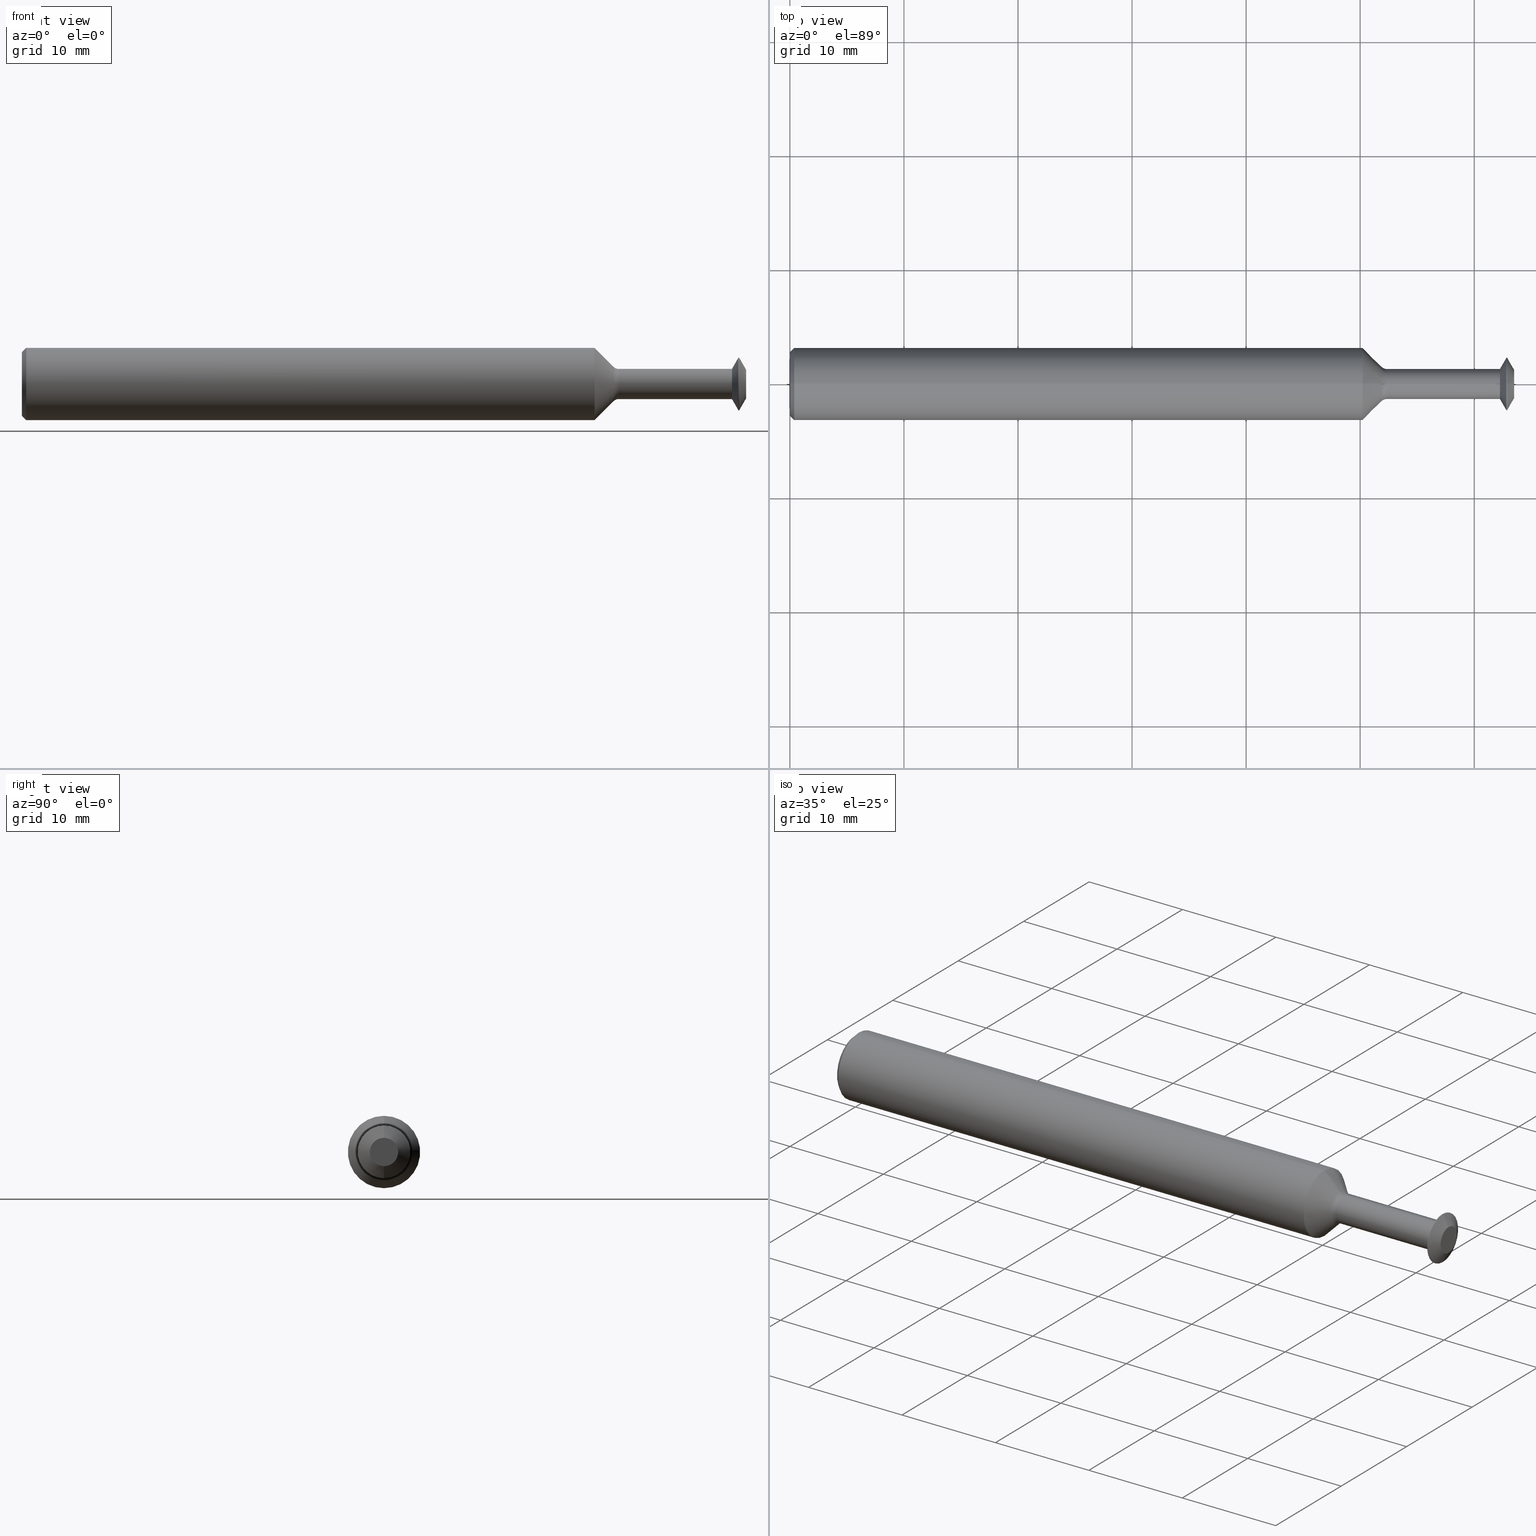
[diagram: canonical four-view strip — front | top / right | iso, engineering-drawing reading convention]
A machine part, canonical four-view strip (front | top / right | iso — engineering-drawing reading convention). The complete STEP part file that produces these views, byte-faithful:
ISO-10303-21;
HEADER;
FILE_DESCRIPTION (( 'STEP AP214' ),
    '1' );
FILE_NAME ('SPTM182.STEP',
    '2019-05-03T19:01:55',
    ( '' ),
    ( '' ),
    'SwSTEP 2.0',
    'SolidWorks 2018',
    '' );
FILE_SCHEMA (( 'AUTOMOTIVE_DESIGN' ));
ENDSEC;

DATA;
#1 = DIRECTION ( 'NONE',  ( -1.000000000000000000, -0.0000000000000000000, -0.0000000000000000000 ) ) ;
#2 = VERTEX_POINT ( 'NONE', #159 ) ;
#3 =( NAMED_UNIT ( * ) SI_UNIT ( $, .STERADIAN. ) SOLID_ANGLE_UNIT ( ) );
#4 = CARTESIAN_POINT ( 'NONE',  ( 2.473397675422181141, 0.0000000000000000000, 0.0000000000000000000 ) ) ;
#5 = SURFACE_STYLE_FILL_AREA ( #278 ) ;
#6 = DIRECTION ( 'NONE',  ( -1.000000000000000000, -0.0000000000000000000, -0.0000000000000000000 ) ) ;
#7 = EDGE_LOOP ( 'NONE', ( #93, #275, #446, #318 ) ) ;
#8 = EDGE_LOOP ( 'NONE', ( #314, #319, #496, #244 ) ) ;
#9 = AXIS2_PLACEMENT_3D ( 'NONE', #356, #221, #312 ) ;
#10 = DIRECTION ( 'NONE',  ( -0.7071067811865482389, 0.0000000000000000000, 0.7071067811865469066 ) ) ;
#11 = DIRECTION ( 'NONE',  ( 0.0000000000000000000, 0.0000000000000000000, 1.000000000000000000 ) ) ;
#12 = DIMENSIONAL_EXPONENTS ( 1.000000000000000000, 0.0000000000000000000, 0.0000000000000000000, 0.0000000000000000000, 0.0000000000000000000, 0.0000000000000000000, 0.0000000000000000000 ) ;
#13 = CIRCLE ( 'NONE', #75, 0.05932233047033651924 ) ;
#14 = ORIENTED_EDGE ( 'NONE', *, *, #162, .F. ) ;
#15 = ADVANCED_FACE ( 'NONE', ( #449 ), #332, .T. ) ;
#16 = AXIS2_PLACEMENT_3D ( 'NONE', #490, #425, #18 ) ;
#17 = DIRECTION ( 'NONE',  ( 0.0000000000000000000, 0.0000000000000000000, 1.000000000000000000 ) ) ;
#18 = DIRECTION ( 'NONE',  ( 0.0000000000000000000, 0.0000000000000000000, 1.000000000000000000 ) ) ;
#19 = CARTESIAN_POINT ( 'NONE',  ( 2.060003014481508465, 9.429780353434618845E-18, -0.07699999999999998512 ) ) ;
#20 = VERTEX_POINT ( 'NONE', #122 ) ;
#21 = CARTESIAN_POINT ( 'NONE',  ( 2.060003014481508465, 0.0000000000000000000, 0.0000000000000000000 ) ) ;
#22 = ADVANCED_FACE ( 'NONE', ( #427 ), #236, .T. ) ;
#23 = CIRCLE ( 'NONE', #192, 0.09099999999999953959 ) ;
#24 = CARTESIAN_POINT ( 'NONE',  ( 2.042325344951845256, 7.264890212845911207E-18, -0.05932233047033651924 ) ) ;
#25 = LINE ( 'NONE', #484, #404 ) ;
#26 = AXIS2_PLACEMENT_3D ( 'NONE', #448, #206, #308 ) ;
#27 = EDGE_LOOP ( 'NONE', ( #82, #358, #390, #385 ) ) ;
#28 = DIRECTION ( 'NONE',  ( -1.000000000000000000, -0.0000000000000000000, -0.0000000000000000000 ) ) ;
#29 = VECTOR ( 'NONE', #255, 39.37007874015748143 ) ;
#30 = DIRECTION ( 'NONE',  ( 0.0000000000000000000, 0.0000000000000000000, 1.000000000000000000 ) ) ;
#31 = ORIENTED_EDGE ( 'NONE', *, *, #414, .T. ) ;
#32 = DIRECTION ( 'NONE',  ( -1.000000000000000000, -0.0000000000000000000, -0.0000000000000000000 ) ) ;
#33 = EDGE_CURVE ( 'NONE', #78, #283, #131, .T. ) ;
#34 = VECTOR ( 'NONE', #362, 39.37007874015748854 ) ;
#35 = ORIENTED_EDGE ( 'NONE', *, *, #119, .T. ) ;
#36 = CYLINDRICAL_SURFACE ( 'NONE', #224, 0.1248500000000000026 ) ;
#37 = AXIS2_PLACEMENT_3D ( 'NONE', #21, #391, #17 ) ;
#38 = ORIENTED_EDGE ( 'NONE', *, *, #245, .F. ) ;
#39 = DIRECTION ( 'NONE',  ( -1.000000000000000000, -0.0000000000000000000, -0.0000000000000000000 ) ) ;
#40 = FACE_OUTER_BOUND ( 'NONE', #248, .T. ) ;
#41 = CLOSED_SHELL ( 'NONE', ( #287, #90, #250, #474, #15, #51, #480, #53, #443, #47, #375, #22, #141, #135, #256, #409, #216, #133 ) ) ;
#42 = DIRECTION ( 'NONE',  ( 0.0000000000000000000, -1.224646799147353207E-16, 1.000000000000000000 ) ) ;
#43 = AXIS2_PLACEMENT_3D ( 'NONE', #187, #361, #165 ) ;
#44 =( LENGTH_UNIT ( ) NAMED_UNIT ( * ) SI_UNIT ( $, .METRE. ) );
#45 = LINE ( 'NONE', #407, #79 ) ;
#46 = DIRECTION ( 'NONE',  ( 0.0000000000000000000, 0.0000000000000000000, -1.000000000000000000 ) ) ;
#47 = ADVANCED_FACE ( 'NONE', ( #228 ), #145, .T. ) ;
#48 = DIRECTION ( 'NONE',  ( 0.0000000000000000000, 0.0000000000000000000, 1.000000000000000000 ) ) ;
#49 = DIRECTION ( 'NONE',  ( -1.000000000000000000, -0.0000000000000000000, -0.0000000000000000000 ) ) ;
#50 = ORIENTED_EDGE ( 'NONE', *, *, #126, .F. ) ;
#51 = ADVANCED_FACE ( 'NONE', ( #418 ), #153, .T. ) ;
#52 = DIRECTION ( 'NONE',  ( -0.4977310399126123608, 0.0000000000000000000, 0.8673314314075728504 ) ) ;
#53 = ADVANCED_FACE ( 'NONE', ( #341 ), #457, .T. ) ;
#54 =( CONVERSION_BASED_UNIT ( 'INCH', #209 ) LENGTH_UNIT ( ) NAMED_UNIT ( #169 ) );
#55 = AXIS2_PLACEMENT_3D ( 'NONE', #495, #242, #468 ) ;
#56 = VERTEX_POINT ( 'NONE', #455 ) ;
#57 = VERTEX_POINT ( 'NONE', #280 ) ;
#58 = FILL_AREA_STYLE_COLOUR ( '', #494 ) ;
#59 = LENGTH_MEASURE_WITH_UNIT ( LENGTH_MEASURE( 0.02539999999999999897 ), #44 );
#60 = CARTESIAN_POINT ( 'NONE',  ( 2.060003014481508465, 0.0000000000000000000, 0.07699999999999998512 ) ) ;
#61 = CARTESIAN_POINT ( 'NONE',  ( 2.060003014481508465, 0.0000000000000000000, 0.0000000000000000000 ) ) ;
#62 = FACE_OUTER_BOUND ( 'NONE', #205, .T. ) ;
#63 = AXIS2_PLACEMENT_3D ( 'NONE', #220, #1, #481 ) ;
#64 = EDGE_LOOP ( 'NONE', ( #296, #203, #298, #333 ) ) ;
#65 = DIRECTION ( 'NONE',  ( 1.000000000000000000, 0.0000000000000000000, 0.0000000000000000000 ) ) ;
#66 = FILL_AREA_STYLE ('',( #58 ) ) ;
#67 = CARTESIAN_POINT ( 'NONE',  ( 2.500000000000000000, 6.000769315821972746E-18, -0.04899999999999953004 ) ) ;
#68 = UNCERTAINTY_MEASURE_WITH_UNIT (LENGTH_MEASURE( 1.000000000000000082E-05 ), #54, 'distance_accuracy_value', 'NONE');
#69 = ORIENTED_EDGE ( 'NONE', *, *, #177, .T. ) ;
#70 = VERTEX_POINT ( 'NONE', #71 ) ;
#71 = CARTESIAN_POINT ( 'NONE',  ( 2.500000000000000000, 0.0000000000000000000, 0.04899999999999953004 ) ) ;
#72 = CARTESIAN_POINT ( 'NONE',  ( 2.451016945457063834, 0.0000000000000000000, 0.0000000000000000000 ) ) ;
#73 = TOROIDAL_SURFACE ( 'NONE', #9, 0.07699999999999998512, 0.02499999999999983485 ) ;
#74 = CARTESIAN_POINT ( 'NONE',  ( 1.976797675422181433, 0.0000000000000000000, 0.0000000000000000000 ) ) ;
#75 = AXIS2_PLACEMENT_3D ( 'NONE', #227, #339, #30 ) ;
#76 = PRESENTATION_STYLE_ASSIGNMENT (( #359 ) ) ;
#77 = CYLINDRICAL_SURFACE ( 'NONE', #214, 0.05200000000000008088 ) ;
#78 = VERTEX_POINT ( 'NONE', #292 ) ;
#79 = VECTOR ( 'NONE', #52, 39.37007874015748854 ) ;
#80 = ORIENTED_EDGE ( 'NONE', *, *, #397, .T. ) ;
#81 =( NAMED_UNIT ( * ) SI_UNIT ( $, .STERADIAN. ) SOLID_ANGLE_UNIT ( ) );
#82 = ORIENTED_EDGE ( 'NONE', *, *, #33, .F. ) ;
#83 = CARTESIAN_POINT ( 'NONE',  ( 2.500000000000000000, 0.0000000000000000000, 0.0000000000000000000 ) ) ;
#84 = AXIS2_PLACEMENT_3D ( 'NONE', #235, #486, #240 ) ;
#85 = DIRECTION ( 'NONE',  ( -1.000000000000000000, -0.0000000000000000000, -0.0000000000000000000 ) ) ;
#86 = CARTESIAN_POINT ( 'NONE',  ( 0.01500000000000024925, 0.0000000000000000000, 0.1248500000000000026 ) ) ;
#87 = CYLINDRICAL_SURFACE ( 'NONE', #233, 0.09099999999999953959 ) ;
#88 = CARTESIAN_POINT ( 'NONE',  ( 2.042325344951845256, 0.0000000000000000000, 0.0000000000000000000 ) ) ;
#89 = EDGE_CURVE ( 'NONE', #237, #150, #161, .T. ) ;
#90 = ADVANCED_FACE ( 'NONE', ( #290 ), #247, .T. ) ;
#91 = CARTESIAN_POINT ( 'NONE',  ( 0.0000000000000000000, 1.114428587224085715E-17, -0.09099999999999953959 ) ) ;
#92 = CIRCLE ( 'NONE', #182, 0.04899999999999953004 ) ;
#93 = ORIENTED_EDGE ( 'NONE', *, *, #324, .T. ) ;
#94 = DIRECTION ( 'NONE',  ( 0.0000000000000000000, 0.0000000000000000000, -1.000000000000000000 ) ) ;
#95 = AXIS2_PLACEMENT_3D ( 'NONE', #309, #269, #357 ) ;
#96 = VECTOR ( 'NONE', #226, 39.37007874015748143 ) ;
#97 = CARTESIAN_POINT ( 'NONE',  ( 2.473397675422181141, 0.0000000000000000000, 0.0000000000000000000 ) ) ;
#98 = CARTESIAN_POINT ( 'NONE',  ( 2.500000000000000000, 0.0000000000000000000, 0.0000000000000000000 ) ) ;
#99 = ORIENTED_EDGE ( 'NONE', *, *, #324, .F. ) ;
#100 = CARTESIAN_POINT ( 'NONE',  ( 1.976797675422181433, 1.528971528735470422E-17, -0.1248500000000000026 ) ) ;
#101 = EDGE_LOOP ( 'NONE', ( #99, #121 ) ) ;
#102 = CARTESIAN_POINT ( 'NONE',  ( 0.0000000000000000000, 0.0000000000000000000, 0.0000000000000000000 ) ) ;
#103 = AXIS2_PLACEMENT_3D ( 'NONE', #377, #424, #225 ) ;
#104 = LINE ( 'NONE', #306, #463 ) ;
#105 = EDGE_LOOP ( 'NONE', ( #450, #346, #376, #125 ) ) ;
#106 = CARTESIAN_POINT ( 'NONE',  ( 2.473397675422181141, 0.0000000000000000000, 0.0000000000000000000 ) ) ;
#107 = DIRECTION ( 'NONE',  ( 0.0000000000000000000, 0.0000000000000000000, -1.000000000000000000 ) ) ;
#108 = PRODUCT_DEFINITION_SHAPE ( 'NONE', 'NONE',  #363 ) ;
#109 = ORIENTED_EDGE ( 'NONE', *, *, #245, .T. ) ;
#110 = CARTESIAN_POINT ( 'NONE',  ( 2.060003014481508465, 0.0000000000000000000, 0.05200000000000015721 ) ) ;
#111 = VERTEX_POINT ( 'NONE', #331 ) ;
#112 = DIRECTION ( 'NONE',  ( -1.000000000000000000, -0.0000000000000000000, -0.0000000000000000000 ) ) ;
#113 = DIRECTION ( 'NONE',  ( -1.000000000000000000, -0.0000000000000000000, -0.0000000000000000000 ) ) ;
#114 = CONICAL_SURFACE ( 'NONE', #343, 0.05932233047033651924, 0.7853981633974473908 ) ;
#115 = VECTOR ( 'NONE', #85, 39.37007874015748143 ) ;
#116 = DIRECTION ( 'NONE',  ( 0.0000000000000000000, 0.0000000000000000000, 1.000000000000000000 ) ) ;
#117 = FACE_OUTER_BOUND ( 'NONE', #101, .T. ) ;
#118 = VECTOR ( 'NONE', #487, 39.37007874015748143 ) ;
#119 = EDGE_CURVE ( 'NONE', #57, #237, #13, .T. ) ;
#120 =( LENGTH_UNIT ( ) NAMED_UNIT ( * ) SI_UNIT ( $, .METRE. ) );
#121 = ORIENTED_EDGE ( 'NONE', *, *, #177, .F. ) ;
#122 = CARTESIAN_POINT ( 'NONE',  ( 2.451016945457063834, 0.0000000000000000000, -0.05200000000000000455 ) ) ;
#123 = CONICAL_SURFACE ( 'NONE', #419, 0.1098499999999999199, 0.7853981633974426169 ) ;
#124 = AXIS2_PLACEMENT_3D ( 'NONE', #155, #180, #194 ) ;
#125 = ORIENTED_EDGE ( 'NONE', *, *, #456, .T. ) ;
#126 = EDGE_CURVE ( 'NONE', #20, #56, #25, .T. ) ;
#127 = CARTESIAN_POINT ( 'NONE',  ( 2.500000000000000000, 8.572527594031414950E-18, -0.04899999999999953004 ) ) ;
#128 = CIRCLE ( 'NONE', #37, 0.05200000000000015721 ) ;
#129 = CARTESIAN_POINT ( 'NONE',  ( 1.976797675422181433, 0.0000000000000000000, 0.1248500000000000026 ) ) ;
#130 = DIRECTION ( 'NONE',  ( 0.0000000000000000000, 0.0000000000000000000, 1.000000000000000000 ) ) ;
#131 = LINE ( 'NONE', #274, #118 ) ;
#132 = ORIENTED_EDGE ( 'NONE', *, *, #89, .F. ) ;
#133 = ADVANCED_FACE ( 'NONE', ( #438 ), #172, .T. ) ;
#134 =( NAMED_UNIT ( * ) PLANE_ANGLE_UNIT ( ) SI_UNIT ( $, .RADIAN. ) );
#135 = ADVANCED_FACE ( 'NONE', ( #40 ), #304, .F. ) ;
#136 = CIRCLE ( 'NONE', #84, 0.05200000000000000455 ) ;
#137 = VERTEX_POINT ( 'NONE', #417 ) ;
#138 = PRODUCT ( 'SPTM182', 'SPTM182', '', ( #195 ) ) ;
#139 = DIRECTION ( 'NONE',  ( -1.000000000000000000, -0.0000000000000000000, -0.0000000000000000000 ) ) ;
#140 = DIRECTION ( 'NONE',  ( -1.000000000000000000, -0.0000000000000000000, -0.0000000000000000000 ) ) ;
#141 = ADVANCED_FACE ( 'NONE', ( #62 ), #77, .T. ) ;
#142 = DIRECTION ( 'NONE',  ( -1.000000000000000000, -0.0000000000000000000, -0.0000000000000000000 ) ) ;
#143 =( GEOMETRIC_REPRESENTATION_CONTEXT ( 3 ) GLOBAL_UNCERTAINTY_ASSIGNED_CONTEXT ( ( #68 ) ) GLOBAL_UNIT_ASSIGNED_CONTEXT ( ( #54, #134, #207 ) ) REPRESENTATION_CONTEXT ( 'NONE', 'WORKASPACE' ) );
#144 = CARTESIAN_POINT ( 'NONE',  ( 0.0000000000000000000, 0.0000000000000000000, -0.1098499999999999199 ) ) ;
#145 = CONICAL_SURFACE ( 'NONE', #426, 0.04899999999999953004, 1.049815545074588963 ) ;
#146 = ORIENTED_EDGE ( 'NONE', *, *, #273, .F. ) ;
#147 = LINE ( 'NONE', #251, #217 ) ;
#148 = AXIS2_PLACEMENT_3D ( 'NONE', #60, #460, #211 ) ;
#149 = CARTESIAN_POINT ( 'NONE',  ( 2.473397675422181141, 1.114428587224085715E-17, 0.09099999999999953959 ) ) ;
#150 = VERTEX_POINT ( 'NONE', #100 ) ;
#151 = EDGE_CURVE ( 'NONE', #272, #283, #488, .T. ) ;
#152 = LENGTH_MEASURE_WITH_UNIT ( LENGTH_MEASURE( 0.02539999999999999897 ), #120 );
#153 = CONICAL_SURFACE ( 'NONE', #500, 0.09099999999999953959, 1.049815545074589851 ) ;
#154 = VERTEX_POINT ( 'NONE', #110 ) ;
#155 = CARTESIAN_POINT ( 'NONE',  ( 2.475897675422181088, 0.0000000000000000000, 0.0000000000000000000 ) ) ;
#156 = LINE ( 'NONE', #174, #299 ) ;
#157 = AXIS2_PLACEMENT_3D ( 'NONE', #61, #259, #499 ) ;
#158 = EDGE_LOOP ( 'NONE', ( #132, #364, #483, #282 ) ) ;
#159 = CARTESIAN_POINT ( 'NONE',  ( 2.451016945457063834, 8.756224613903546798E-18, 0.05200000000000000455 ) ) ;
#160 = PLANE ( 'NONE',  #263 ) ;
#161 = LINE ( 'NONE', #24, #260 ) ;
#162 = EDGE_CURVE ( 'NONE', #423, #497, #104, .T. ) ;
#163 = ORIENTED_EDGE ( 'NONE', *, *, #434, .F. ) ;
#164 =( LENGTH_UNIT ( ) NAMED_UNIT ( * ) SI_UNIT ( $, .METRE. ) );
#165 = DIRECTION ( 'NONE',  ( 0.0000000000000000000, 0.0000000000000000000, -1.000000000000000000 ) ) ;
#166 = DIRECTION ( 'NONE',  ( 0.0000000000000000000, 0.0000000000000000000, 1.000000000000000000 ) ) ;
#167 = LINE ( 'NONE', #186, #96 ) ;
#168 = FILL_AREA_STYLE_COLOUR ( '', #472 ) ;
#169 = DIMENSIONAL_EXPONENTS ( 1.000000000000000000, 0.0000000000000000000, 0.0000000000000000000, 0.0000000000000000000, 0.0000000000000000000, 0.0000000000000000000, 0.0000000000000000000 ) ;
#170 = DIRECTION ( 'NONE',  ( -1.000000000000000000, -0.0000000000000000000, -0.0000000000000000000 ) ) ;
#171 =( NAMED_UNIT ( * ) PLANE_ANGLE_UNIT ( ) SI_UNIT ( $, .RADIAN. ) );
#172 = CONICAL_SURFACE ( 'NONE', #43, 0.1098499999999999199, 0.7853981633974426169 ) ;
#173 = EDGE_LOOP ( 'NONE', ( #432, #365, #454, #271 ) ) ;
#174 = CARTESIAN_POINT ( 'NONE',  ( 2.042325344951845256, 0.0000000000000000000, 0.05932233047033651924 ) ) ;
#175 = AXIS2_PLACEMENT_3D ( 'NONE', #453, #353, #48 ) ;
#176 = LINE ( 'NONE', #91, #29 ) ;
#177 = EDGE_CURVE ( 'NONE', #198, #70, #92, .T. ) ;
#178 = ORIENTED_EDGE ( 'NONE', *, *, #447, .T. ) ;
#179 = ORIENTED_EDGE ( 'NONE', *, *, #300, .T. ) ;
#180 = DIRECTION ( 'NONE',  ( -1.000000000000000000, -0.0000000000000000000, -0.0000000000000000000 ) ) ;
#181 = DIRECTION ( 'NONE',  ( 0.0000000000000000000, 0.0000000000000000000, 1.000000000000000000 ) ) ;
#182 = AXIS2_PLACEMENT_3D ( 'NONE', #83, #281, #469 ) ;
#183 = DIRECTION ( 'NONE',  ( 1.000000000000000000, 0.0000000000000000000, 0.0000000000000000000 ) ) ;
#184 = ORIENTED_EDGE ( 'NONE', *, *, #294, .T. ) ;
#185 = VERTEX_POINT ( 'NONE', #249 ) ;
#186 = CARTESIAN_POINT ( 'NONE',  ( 0.0000000000000000000, 6.368163355566246458E-18, -0.05200000000000008088 ) ) ;
#187 = CARTESIAN_POINT ( 'NONE',  ( 0.0000000000000000000, 0.0000000000000000000, 0.0000000000000000000 ) ) ;
#188 = UNCERTAINTY_MEASURE_WITH_UNIT (LENGTH_MEASURE( 1.000000000000000082E-05 ), #410, 'distance_accuracy_value', 'NONE');
#189 = ORIENTED_EDGE ( 'NONE', *, *, #465, .F. ) ;
#190 = VERTEX_POINT ( 'NONE', #218 ) ;
#191 = DIRECTION ( 'NONE',  ( 0.0000000000000000000, 0.0000000000000000000, 1.000000000000000000 ) ) ;
#192 = AXIS2_PLACEMENT_3D ( 'NONE', #370, #28, #349 ) ;
#193 = CARTESIAN_POINT ( 'NONE',  ( 0.0000000000000000000, 0.0000000000000000000, 0.0000000000000000000 ) ) ;
#194 = DIRECTION ( 'NONE',  ( 0.0000000000000000000, 0.0000000000000000000, 1.000000000000000000 ) ) ;
#195 = PRODUCT_CONTEXT ( 'NONE', #264, 'mechanical' ) ;
#196 = EDGE_CURVE ( 'NONE', #198, #190, #197, .T. ) ;
#197 = LINE ( 'NONE', #67, #34 ) ;
#198 = VERTEX_POINT ( 'NONE', #127 ) ;
#199 = APPLICATION_PROTOCOL_DEFINITION ( 'draft international standard', 'automotive_design', 1998, #310 ) ;
#200 = AXIS2_PLACEMENT_3D ( 'NONE', #493, #381, #415 ) ;
#201 = FACE_OUTER_BOUND ( 'NONE', #173, .T. ) ;
#202 = PRESENTATION_LAYER_ASSIGNMENT (  '', '', ( #257 ) ) ;
#203 = ORIENTED_EDGE ( 'NONE', *, *, #383, .T. ) ;
#204 = DIRECTION ( 'NONE',  ( 0.4977310399126116947, 1.062174661273176990E-16, 0.8673314314075734055 ) ) ;
#205 = EDGE_LOOP ( 'NONE', ( #232, #178, #261, #439 ) ) ;
#206 = DIRECTION ( 'NONE',  ( -1.000000000000000000, -0.0000000000000000000, -0.0000000000000000000 ) ) ;
#207 =( NAMED_UNIT ( * ) SI_UNIT ( $, .STERADIAN. ) SOLID_ANGLE_UNIT ( ) );
#208 = CIRCLE ( 'NONE', #16, 0.05932233047033651924 ) ;
#209 = LENGTH_MEASURE_WITH_UNIT ( LENGTH_MEASURE( 0.02539999999999999897 ), #164 );
#210 = CARTESIAN_POINT ( 'NONE',  ( 2.060003014481508465, 0.0000000000000000000, 0.0000000000000000000 ) ) ;
#211 = DIRECTION ( 'NONE',  ( 0.0000000000000000000, 0.0000000000000000000, -1.000000000000000000 ) ) ;
#212 = DIRECTION ( 'NONE',  ( 0.0000000000000000000, 0.0000000000000000000, 1.000000000000000000 ) ) ;
#213 = CIRCLE ( 'NONE', #238, 0.09099999999999953959 ) ;
#214 = AXIS2_PLACEMENT_3D ( 'NONE', #413, #170, #181 ) ;
#215 = ORIENTED_EDGE ( 'NONE', *, *, #267, .F. ) ;
#216 = ADVANCED_FACE ( 'NONE', ( #501 ), #160, .F. ) ;
#217 = VECTOR ( 'NONE', #49, 39.37007874015748143 ) ;
#218 = CARTESIAN_POINT ( 'NONE',  ( 2.475897675422181088, 1.114428587224085561E-17, -0.09099999999999953959 ) ) ;
#219 = ORIENTED_EDGE ( 'NONE', *, *, #422, .F. ) ;
#220 = CARTESIAN_POINT ( 'NONE',  ( 0.0000000000000000000, 0.0000000000000000000, 0.0000000000000000000 ) ) ;
#221 = DIRECTION ( 'NONE',  ( -1.000000000000000000, -0.0000000000000000000, -0.0000000000000000000 ) ) ;
#222 = DIRECTION ( 'NONE',  ( 1.000000000000000000, 0.0000000000000000000, 0.0000000000000000000 ) ) ;
#223 = CIRCLE ( 'NONE', #395, 0.02499999999999983485 ) ;
#224 = AXIS2_PLACEMENT_3D ( 'NONE', #433, #32, #372 ) ;
#225 = DIRECTION ( 'NONE',  ( 0.0000000000000000000, 0.0000000000000000000, 1.000000000000000000 ) ) ;
#226 = DIRECTION ( 'NONE',  ( -1.000000000000000000, -0.0000000000000000000, -0.0000000000000000000 ) ) ;
#227 = CARTESIAN_POINT ( 'NONE',  ( 2.042325344951845256, 0.0000000000000000000, 0.0000000000000000000 ) ) ;
#228 = FACE_OUTER_BOUND ( 'NONE', #265, .T. ) ;
#229 = DIRECTION ( 'NONE',  ( -1.000000000000000000, -0.0000000000000000000, -0.0000000000000000000 ) ) ;
#230 = AXIS2_PLACEMENT_3D ( 'NONE', #321, #229, #387 ) ;
#231 = CARTESIAN_POINT ( 'NONE',  ( 0.0000000000000000000, 0.0000000000000000000, 0.0000000000000000000 ) ) ;
#232 = ORIENTED_EDGE ( 'NONE', *, *, #345, .F. ) ;
#233 = AXIS2_PLACEMENT_3D ( 'NONE', #193, #112, #477 ) ;
#234 = LINE ( 'NONE', #307, #327 ) ;
#235 = CARTESIAN_POINT ( 'NONE',  ( 2.451016945457063834, 0.0000000000000000000, 0.0000000000000000000 ) ) ;
#236 = CONICAL_SURFACE ( 'NONE', #451, 0.09099999999999953959, 1.049815545074589851 ) ;
#237 = VERTEX_POINT ( 'NONE', #288 ) ;
#238 = AXIS2_PLACEMENT_3D ( 'NONE', #97, #441, #212 ) ;
#239 = FACE_OUTER_BOUND ( 'NONE', #64, .T. ) ;
#240 = DIRECTION ( 'NONE',  ( 0.0000000000000000000, 0.0000000000000000000, 1.000000000000000000 ) ) ;
#241 = VECTOR ( 'NONE', #204, 39.37007874015748143 ) ;
#242 = DIRECTION ( 'NONE',  ( -1.000000000000000000, 0.0000000000000000000, -0.0000000000000000000 ) ) ;
#243 = EDGE_CURVE ( 'NONE', #56, #137, #213, .T. ) ;
#244 = ORIENTED_EDGE ( 'NONE', *, *, #243, .T. ) ;
#245 = EDGE_CURVE ( 'NONE', #154, #111, #384, .T. ) ;
#246 = CARTESIAN_POINT ( 'NONE',  ( 0.01500000000000024925, 1.528971528735470422E-17, -0.1248500000000000026 ) ) ;
#247 = CYLINDRICAL_SURFACE ( 'NONE', #103, 0.1248500000000000026 ) ;
#248 = EDGE_LOOP ( 'NONE', ( #350, #325, #254, #109 ) ) ;
#249 = CARTESIAN_POINT ( 'NONE',  ( 2.475897675422181088, 0.0000000000000000000, 0.09099999999999953959 ) ) ;
#250 = ADVANCED_FACE ( 'NONE', ( #315 ), #430, .T. ) ;
#251 = CARTESIAN_POINT ( 'NONE',  ( 0.0000000000000000000, 1.528971528735470422E-17, -0.1248500000000000026 ) ) ;
#252 = CARTESIAN_POINT ( 'NONE',  ( 0.0000000000000000000, 0.0000000000000000000, 0.0000000000000000000 ) ) ;
#253 =( GEOMETRIC_REPRESENTATION_CONTEXT ( 3 ) GLOBAL_UNCERTAINTY_ASSIGNED_CONTEXT ( ( #188 ) ) GLOBAL_UNIT_ASSIGNED_CONTEXT ( ( #410, #171, #81 ) ) REPRESENTATION_CONTEXT ( 'NONE', 'WORKASPACE' ) );
#254 = ORIENTED_EDGE ( 'NONE', *, *, #374, .T. ) ;
#255 = DIRECTION ( 'NONE',  ( -1.000000000000000000, -0.0000000000000000000, -0.0000000000000000000 ) ) ;
#256 = ADVANCED_FACE ( 'NONE', ( #416 ), #114, .T. ) ;
#257 = STYLED_ITEM ( 'NONE', ( #76 ), #347 ) ;
#258 = LINE ( 'NONE', #498, #115 ) ;
#259 = DIRECTION ( 'NONE',  ( -1.000000000000000000, -0.0000000000000000000, -0.0000000000000000000 ) ) ;
#260 = VECTOR ( 'NONE', #301, 39.37007874015748143 ) ;
#261 = ORIENTED_EDGE ( 'NONE', *, *, #465, .T. ) ;
#262 = FACE_OUTER_BOUND ( 'NONE', #313, .T. ) ;
#263 = AXIS2_PLACEMENT_3D ( 'NONE', #402, #336, #46 ) ;
#264 = APPLICATION_CONTEXT ( 'automotive_design' ) ;
#265 = EDGE_LOOP ( 'NONE', ( #412, #69, #338, #482 ) ) ;
#266 = DIRECTION ( 'NONE',  ( 1.000000000000000000, 0.0000000000000000000, 0.0000000000000000000 ) ) ;
#267 = EDGE_CURVE ( 'NONE', #57, #272, #156, .T. ) ;
#268 = DIRECTION ( 'NONE',  ( 0.0000000000000000000, 0.0000000000000000000, 1.000000000000000000 ) ) ;
#269 = DIRECTION ( 'NONE',  ( 1.000000000000000000, 0.0000000000000000000, 0.0000000000000000000 ) ) ;
#270 = DIRECTION ( 'NONE',  ( 0.0000000000000000000, 0.0000000000000000000, 1.000000000000000000 ) ) ;
#271 = ORIENTED_EDGE ( 'NONE', *, *, #374, .F. ) ;
#272 = VERTEX_POINT ( 'NONE', #129 ) ;
#273 = EDGE_CURVE ( 'NONE', #78, #423, #382, .T. ) ;
#274 = CARTESIAN_POINT ( 'NONE',  ( 0.0000000000000000000, 1.345274508863366152E-17, 0.1098499999999999199 ) ) ;
#275 = ORIENTED_EDGE ( 'NONE', *, *, #196, .T. ) ;
#276 = MECHANICAL_DESIGN_GEOMETRIC_PRESENTATION_REPRESENTATION (  '', ( #337 ), #253 ) ;
#277 =( GEOMETRIC_REPRESENTATION_CONTEXT ( 3 ) GLOBAL_UNCERTAINTY_ASSIGNED_CONTEXT ( ( #373 ) ) GLOBAL_UNIT_ASSIGNED_CONTEXT ( ( #286, #323, #3 ) ) REPRESENTATION_CONTEXT ( 'NONE', 'WORKASPACE' ) );
#278 = FILL_AREA_STYLE ('',( #168 ) ) ;
#279 = SURFACE_SIDE_STYLE ('',( #5 ) ) ;
#280 = CARTESIAN_POINT ( 'NONE',  ( 2.042325344951845256, 0.0000000000000000000, 0.05932233047033641515 ) ) ;
#281 = DIRECTION ( 'NONE',  ( -1.000000000000000000, -0.0000000000000000000, -0.0000000000000000000 ) ) ;
#282 = ORIENTED_EDGE ( 'NONE', *, *, #340, .F. ) ;
#283 = VERTEX_POINT ( 'NONE', #86 ) ;
#284 = DIRECTION ( 'NONE',  ( -1.000000000000000000, -0.0000000000000000000, -0.0000000000000000000 ) ) ;
#285 = EDGE_CURVE ( 'NONE', #237, #111, #223, .T. ) ;
#286 =( CONVERSION_BASED_UNIT ( 'INCH', #59 ) LENGTH_UNIT ( ) NAMED_UNIT ( #12 ) );
#287 = ADVANCED_FACE ( 'NONE', ( #262 ), #123, .T. ) ;
#288 = CARTESIAN_POINT ( 'NONE',  ( 2.042325344951845256, 7.264890212845898881E-18, -0.05932233047033641515 ) ) ;
#289 = AXIS2_PLACEMENT_3D ( 'NONE', #210, #437, #11 ) ;
#290 = FACE_OUTER_BOUND ( 'NONE', #291, .T. ) ;
#291 = EDGE_LOOP ( 'NONE', ( #305, #184, #466, #405 ) ) ;
#292 = CARTESIAN_POINT ( 'NONE',  ( 0.0000000000000000000, 1.437123018799418210E-17, 0.1098499999999999199 ) ) ;
#293 = DIRECTION ( 'NONE',  ( -0.0000000000000000000, 1.000000000000000000, 1.224646799147353207E-16 ) ) ;
#294 = EDGE_CURVE ( 'NONE', #150, #497, #147, .T. ) ;
#295 = CIRCLE ( 'NONE', #124, 0.09099999999999953959 ) ;
#296 = ORIENTED_EDGE ( 'NONE', *, *, #300, .F. ) ;
#297 = DIMENSIONAL_EXPONENTS ( 1.000000000000000000, 0.0000000000000000000, 0.0000000000000000000, 0.0000000000000000000, 0.0000000000000000000, 0.0000000000000000000, 0.0000000000000000000 ) ;
#298 = ORIENTED_EDGE ( 'NONE', *, *, #354, .T. ) ;
#299 = VECTOR ( 'NONE', #10, 39.37007874015748143 ) ;
#300 = EDGE_CURVE ( 'NONE', #190, #56, #176, .T. ) ;
#301 = DIRECTION ( 'NONE',  ( -0.7071067811865482389, 8.659560562354925463E-17, -0.7071067811865469066 ) ) ;
#302 = SHAPE_DEFINITION_REPRESENTATION ( #108, #347 ) ;
#303 = CIRCLE ( 'NONE', #200, 0.1098499999999999199 ) ;
#304 = TOROIDAL_SURFACE ( 'NONE', #157, 0.07699999999999998512, 0.02499999999999983485 ) ;
#305 = ORIENTED_EDGE ( 'NONE', *, *, #422, .T. ) ;
#306 = CARTESIAN_POINT ( 'NONE',  ( 0.0000000000000000000, 0.0000000000000000000, -0.1098499999999999199 ) ) ;
#307 = CARTESIAN_POINT ( 'NONE',  ( 0.0000000000000000000, 0.0000000000000000000, 0.09099999999999953959 ) ) ;
#308 = DIRECTION ( 'NONE',  ( 0.0000000000000000000, 0.0000000000000000000, 1.000000000000000000 ) ) ;
#309 = CARTESIAN_POINT ( 'NONE',  ( 0.01500000000000024925, 0.0000000000000000000, 0.0000000000000000000 ) ) ;
#310 = APPLICATION_CONTEXT ( 'automotive_design' ) ;
#311 = PRESENTATION_LAYER_ASSIGNMENT (  '', '', ( #337 ) ) ;
#312 = DIRECTION ( 'NONE',  ( 0.0000000000000000000, 0.0000000000000000000, 1.000000000000000000 ) ) ;
#313 = EDGE_LOOP ( 'NONE', ( #146, #458, #371, #14 ) ) ;
#314 = ORIENTED_EDGE ( 'NONE', *, *, #397, .F. ) ;
#315 = FACE_OUTER_BOUND ( 'NONE', #400, .T. ) ;
#316 = EDGE_CURVE ( 'NONE', #70, #185, #45, .T. ) ;
#317 = CIRCLE ( 'NONE', #95, 0.1248500000000000026 ) ;
#318 = ORIENTED_EDGE ( 'NONE', *, *, #316, .F. ) ;
#319 = ORIENTED_EDGE ( 'NONE', *, *, #447, .F. ) ;
#320 = PRODUCT_DEFINITION_CONTEXT ( 'detailed design', #310, 'design' ) ;
#321 = CARTESIAN_POINT ( 'NONE',  ( 1.976797675422181433, 0.0000000000000000000, 0.0000000000000000000 ) ) ;
#322 = AXIS2_PLACEMENT_3D ( 'NONE', #88, #39, #367 ) ;
#323 =( NAMED_UNIT ( * ) PLANE_ANGLE_UNIT ( ) SI_UNIT ( $, .RADIAN. ) );
#324 = EDGE_CURVE ( 'NONE', #70, #198, #492, .T. ) ;
#325 = ORIENTED_EDGE ( 'NONE', *, *, #119, .F. ) ;
#326 = CARTESIAN_POINT ( 'NONE',  ( 0.01500000000000024925, 0.0000000000000000000, 0.0000000000000000000 ) ) ;
#327 = VECTOR ( 'NONE', #436, 39.37007874015748143 ) ;
#328 = CARTESIAN_POINT ( 'NONE',  ( 2.042325344951845256, 0.0000000000000000000, 0.0000000000000000000 ) ) ;
#329 = PRESENTATION_STYLE_ASSIGNMENT (( #386 ) ) ;
#330 = EDGE_CURVE ( 'NONE', #2, #20, #408, .T. ) ;
#331 = CARTESIAN_POINT ( 'NONE',  ( 2.060003014481508465, 6.368163355566256473E-18, -0.05200000000000015721 ) ) ;
#332 = CYLINDRICAL_SURFACE ( 'NONE', #471, 0.05200000000000008088 ) ;
#333 = ORIENTED_EDGE ( 'NONE', *, *, #243, .F. ) ;
#334 = DIRECTION ( 'NONE',  ( -1.000000000000000000, -0.0000000000000000000, -0.0000000000000000000 ) ) ;
#335 = PLANE ( 'NONE',  #55 ) ;
#336 = DIRECTION ( 'NONE',  ( 1.000000000000000000, 0.0000000000000000000, 0.0000000000000000000 ) ) ;
#337 = STYLED_ITEM ( 'NONE', ( #329 ), #406 ) ;
#338 = ORIENTED_EDGE ( 'NONE', *, *, #316, .T. ) ;
#339 = DIRECTION ( 'NONE',  ( -1.000000000000000000, -0.0000000000000000000, -0.0000000000000000000 ) ) ;
#340 = EDGE_CURVE ( 'NONE', #150, #272, #470, .T. ) ;
#341 = FACE_OUTER_BOUND ( 'NONE', #7, .T. ) ;
#342 = ORIENTED_EDGE ( 'NONE', *, *, #434, .T. ) ;
#343 = AXIS2_PLACEMENT_3D ( 'NONE', #328, #284, #166 ) ;
#344 = LINE ( 'NONE', #149, #241 ) ;
#345 = EDGE_CURVE ( 'NONE', #20, #111, #167, .T. ) ;
#346 = ORIENTED_EDGE ( 'NONE', *, *, #340, .T. ) ;
#347 = ADVANCED_BREP_SHAPE_REPRESENTATION ( 'SPTM182', ( #406, #368 ), #143 ) ;
#348 = FACE_OUTER_BOUND ( 'NONE', #428, .T. ) ;
#349 = DIRECTION ( 'NONE',  ( 0.0000000000000000000, 0.0000000000000000000, 1.000000000000000000 ) ) ;
#350 = ORIENTED_EDGE ( 'NONE', *, *, #285, .F. ) ;
#351 = EDGE_CURVE ( 'NONE', #237, #57, #208, .T. ) ;
#352 = EDGE_LOOP ( 'NONE', ( #401, #411, #38, #189 ) ) ;
#353 = DIRECTION ( 'NONE',  ( -1.000000000000000000, -0.0000000000000000000, -0.0000000000000000000 ) ) ;
#354 = EDGE_CURVE ( 'NONE', #185, #137, #234, .T. ) ;
#355 = SURFACE_STYLE_FILL_AREA ( #66 ) ;
#356 = CARTESIAN_POINT ( 'NONE',  ( 2.060003014481508465, 0.0000000000000000000, 0.0000000000000000000 ) ) ;
#357 = DIRECTION ( 'NONE',  ( 0.0000000000000000000, 0.0000000000000000000, -1.000000000000000000 ) ) ;
#358 = ORIENTED_EDGE ( 'NONE', *, *, #414, .F. ) ;
#359 = SURFACE_STYLE_USAGE ( .BOTH. , #279 ) ;
#360 = AXIS2_PLACEMENT_3D ( 'NONE', #326, #266, #429 ) ;
#361 = DIRECTION ( 'NONE',  ( 1.000000000000000000, 0.0000000000000000000, 0.0000000000000000000 ) ) ;
#362 = DIRECTION ( 'NONE',  ( -0.4977310399126123608, 1.062174661273176127E-16, -0.8673314314075728504 ) ) ;
#363 = PRODUCT_DEFINITION ( 'UNKNOWN', '', #431, #320 ) ;
#364 = ORIENTED_EDGE ( 'NONE', *, *, #351, .T. ) ;
#365 = ORIENTED_EDGE ( 'NONE', *, *, #285, .T. ) ;
#366 = EDGE_CURVE ( 'NONE', #185, #190, #392, .T. ) ;
#367 = DIRECTION ( 'NONE',  ( 0.0000000000000000000, 0.0000000000000000000, 1.000000000000000000 ) ) ;
#368 = AXIS2_PLACEMENT_3D ( 'NONE', #231, #270, #183 ) ;
#369 = AXIS2_PLACEMENT_3D ( 'NONE', #444, #140, #475 ) ;
#370 = CARTESIAN_POINT ( 'NONE',  ( 2.473397675422181141, 0.0000000000000000000, 0.0000000000000000000 ) ) ;
#371 = ORIENTED_EDGE ( 'NONE', *, *, #379, .F. ) ;
#372 = DIRECTION ( 'NONE',  ( 0.0000000000000000000, 0.0000000000000000000, 1.000000000000000000 ) ) ;
#373 = UNCERTAINTY_MEASURE_WITH_UNIT (LENGTH_MEASURE( 1.000000000000000082E-05 ), #286, 'distance_accuracy_value', 'NONE');
#374 = EDGE_CURVE ( 'NONE', #57, #154, #442, .T. ) ;
#375 = ADVANCED_FACE ( 'NONE', ( #239 ), #485, .T. ) ;
#376 = ORIENTED_EDGE ( 'NONE', *, *, #151, .T. ) ;
#377 = CARTESIAN_POINT ( 'NONE',  ( 0.0000000000000000000, 0.0000000000000000000, 0.0000000000000000000 ) ) ;
#378 = ORIENTED_EDGE ( 'NONE', *, *, #366, .T. ) ;
#379 = EDGE_CURVE ( 'NONE', #497, #283, #317, .T. ) ;
#380 = DIRECTION ( 'NONE',  ( 0.0000000000000000000, 0.0000000000000000000, 1.000000000000000000 ) ) ;
#381 = DIRECTION ( 'NONE',  ( -1.000000000000000000, -0.0000000000000000000, -0.0000000000000000000 ) ) ;
#382 = CIRCLE ( 'NONE', #369, 0.1098499999999999199 ) ;
#383 = EDGE_CURVE ( 'NONE', #190, #185, #295, .T. ) ;
#384 = CIRCLE ( 'NONE', #289, 0.05200000000000015721 ) ;
#385 = ORIENTED_EDGE ( 'NONE', *, *, #456, .F. ) ;
#386 = SURFACE_STYLE_USAGE ( .BOTH. , #394 ) ;
#387 = DIRECTION ( 'NONE',  ( 0.0000000000000000000, 0.0000000000000000000, 1.000000000000000000 ) ) ;
#388 = MECHANICAL_DESIGN_GEOMETRIC_PRESENTATION_REPRESENTATION (  '', ( #257 ), #277 ) ;
#389 = ORIENTED_EDGE ( 'NONE', *, *, #354, .F. ) ;
#390 = ORIENTED_EDGE ( 'NONE', *, *, #162, .T. ) ;
#391 = DIRECTION ( 'NONE',  ( -1.000000000000000000, -0.0000000000000000000, -0.0000000000000000000 ) ) ;
#392 = CIRCLE ( 'NONE', #175, 0.09099999999999953959 ) ;
#393 = VECTOR ( 'NONE', #142, 39.37007874015748143 ) ;
#394 = SURFACE_SIDE_STYLE ('',( #355 ) ) ;
#395 = AXIS2_PLACEMENT_3D ( 'NONE', #19, #293, #42 ) ;
#396 = EDGE_LOOP ( 'NONE', ( #31, #473 ) ) ;
#397 = EDGE_CURVE ( 'NONE', #2, #137, #344, .T. ) ;
#398 = CIRCLE ( 'NONE', #360, 0.1248500000000000026 ) ;
#399 = DIRECTION ( 'NONE',  ( 0.0000000000000000000, 0.0000000000000000000, -1.000000000000000000 ) ) ;
#400 = EDGE_LOOP ( 'NONE', ( #35, #464, #219, #215 ) ) ;
#401 = ORIENTED_EDGE ( 'NONE', *, *, #330, .T. ) ;
#402 = CARTESIAN_POINT ( 'NONE',  ( 0.0000000000000000000, 0.0000000000000000000, 0.0000000000000000000 ) ) ;
#403 = EDGE_CURVE ( 'NONE', #111, #154, #128, .T. ) ;
#404 = VECTOR ( 'NONE', #479, 39.37007874015748143 ) ;
#405 = ORIENTED_EDGE ( 'NONE', *, *, #151, .F. ) ;
#406 = MANIFOLD_SOLID_BREP ( '75046F27-EA7F-4997-AAF0-3892DE77C5CD-GAAFaceID9', #41 ) ;
#407 = CARTESIAN_POINT ( 'NONE',  ( 2.500000000000000000, 0.0000000000000000000, 0.04899999999999953004 ) ) ;
#408 = CIRCLE ( 'NONE', #462, 0.05200000000000000455 ) ;
#409 = ADVANCED_FACE ( 'NONE', ( #478 ), #36, .T. ) ;
#410 =( CONVERSION_BASED_UNIT ( 'INCH', #152 ) LENGTH_UNIT ( ) NAMED_UNIT ( #297 ) );
#411 = ORIENTED_EDGE ( 'NONE', *, *, #345, .T. ) ;
#412 = ORIENTED_EDGE ( 'NONE', *, *, #196, .F. ) ;
#413 = CARTESIAN_POINT ( 'NONE',  ( 0.0000000000000000000, 0.0000000000000000000, 0.0000000000000000000 ) ) ;
#414 = EDGE_CURVE ( 'NONE', #423, #78, #303, .T. ) ;
#415 = DIRECTION ( 'NONE',  ( 0.0000000000000000000, 0.0000000000000000000, -1.000000000000000000 ) ) ;
#416 = FACE_OUTER_BOUND ( 'NONE', #158, .T. ) ;
#417 = CARTESIAN_POINT ( 'NONE',  ( 2.473397675422181141, 0.0000000000000000000, 0.09099999999999953959 ) ) ;
#418 = FACE_OUTER_BOUND ( 'NONE', #489, .T. ) ;
#419 = AXIS2_PLACEMENT_3D ( 'NONE', #252, #435, #94 ) ;
#420 = DIRECTION ( 'NONE',  ( 0.7071067811865514585, 0.0000000000000000000, -0.7071067811865435759 ) ) ;
#421 = APPLICATION_PROTOCOL_DEFINITION ( 'draft international standard', 'automotive_design', 1998, #264 ) ;
#422 = EDGE_CURVE ( 'NONE', #272, #150, #461, .T. ) ;
#423 = VERTEX_POINT ( 'NONE', #144 ) ;
#424 = DIRECTION ( 'NONE',  ( -1.000000000000000000, -0.0000000000000000000, -0.0000000000000000000 ) ) ;
#425 = DIRECTION ( 'NONE',  ( -1.000000000000000000, -0.0000000000000000000, -0.0000000000000000000 ) ) ;
#426 = AXIS2_PLACEMENT_3D ( 'NONE', #98, #113, #380 ) ;
#427 = FACE_OUTER_BOUND ( 'NONE', #8, .T. ) ;
#428 = EDGE_LOOP ( 'NONE', ( #378, #179, #163, #389 ) ) ;
#429 = DIRECTION ( 'NONE',  ( 0.0000000000000000000, 0.0000000000000000000, -1.000000000000000000 ) ) ;
#430 = CONICAL_SURFACE ( 'NONE', #322, 0.05932233047033651924, 0.7853981633974473908 ) ;
#431 = PRODUCT_DEFINITION_FORMATION_WITH_SPECIFIED_SOURCE ( 'ANY', '', #138, .NOT_KNOWN. ) ;
#432 = ORIENTED_EDGE ( 'NONE', *, *, #351, .F. ) ;
#433 = CARTESIAN_POINT ( 'NONE',  ( 0.0000000000000000000, 0.0000000000000000000, 0.0000000000000000000 ) ) ;
#434 = EDGE_CURVE ( 'NONE', #137, #56, #23, .T. ) ;
#435 = DIRECTION ( 'NONE',  ( 1.000000000000000000, 0.0000000000000000000, 0.0000000000000000000 ) ) ;
#436 = DIRECTION ( 'NONE',  ( -1.000000000000000000, -0.0000000000000000000, -0.0000000000000000000 ) ) ;
#437 = DIRECTION ( 'NONE',  ( -1.000000000000000000, -0.0000000000000000000, -0.0000000000000000000 ) ) ;
#438 = FACE_OUTER_BOUND ( 'NONE', #27, .T. ) ;
#439 = ORIENTED_EDGE ( 'NONE', *, *, #403, .F. ) ;
#440 = CARTESIAN_POINT ( 'NONE',  ( 2.500000000000000000, 0.0000000000000000000, 0.0000000000000000000 ) ) ;
#441 = DIRECTION ( 'NONE',  ( -1.000000000000000000, -0.0000000000000000000, -0.0000000000000000000 ) ) ;
#442 = CIRCLE ( 'NONE', #148, 0.02499999999999983485 ) ;
#443 = ADVANCED_FACE ( 'NONE', ( #117 ), #335, .F. ) ;
#444 = CARTESIAN_POINT ( 'NONE',  ( 0.0000000000000000000, 0.0000000000000000000, 0.0000000000000000000 ) ) ;
#445 = AXIS2_PLACEMENT_3D ( 'NONE', #440, #452, #130 ) ;
#446 = ORIENTED_EDGE ( 'NONE', *, *, #366, .F. ) ;
#447 = EDGE_CURVE ( 'NONE', #20, #2, #136, .T. ) ;
#448 = CARTESIAN_POINT ( 'NONE',  ( 2.500000000000000000, 0.0000000000000000000, 0.0000000000000000000 ) ) ;
#449 = FACE_OUTER_BOUND ( 'NONE', #352, .T. ) ;
#450 = ORIENTED_EDGE ( 'NONE', *, *, #294, .F. ) ;
#451 = AXIS2_PLACEMENT_3D ( 'NONE', #106, #65, #107 ) ;
#452 = DIRECTION ( 'NONE',  ( -1.000000000000000000, -0.0000000000000000000, -0.0000000000000000000 ) ) ;
#453 = CARTESIAN_POINT ( 'NONE',  ( 2.475897675422181088, 0.0000000000000000000, 0.0000000000000000000 ) ) ;
#454 = ORIENTED_EDGE ( 'NONE', *, *, #403, .T. ) ;
#455 = CARTESIAN_POINT ( 'NONE',  ( 2.473397675422181141, 1.114428587224085715E-17, -0.09099999999999953959 ) ) ;
#456 = EDGE_CURVE ( 'NONE', #283, #497, #398, .T. ) ;
#457 = CONICAL_SURFACE ( 'NONE', #26, 0.04899999999999953004, 1.049815545074588963 ) ;
#458 = ORIENTED_EDGE ( 'NONE', *, *, #33, .T. ) ;
#459 = CARTESIAN_POINT ( 'NONE',  ( 0.0000000000000000000, 0.0000000000000000000, 0.1248500000000000026 ) ) ;
#460 = DIRECTION ( 'NONE',  ( 0.0000000000000000000, -1.000000000000000000, 0.0000000000000000000 ) ) ;
#461 = CIRCLE ( 'NONE', #230, 0.1248500000000000026 ) ;
#462 = AXIS2_PLACEMENT_3D ( 'NONE', #72, #334, #116 ) ;
#463 = VECTOR ( 'NONE', #420, 39.37007874015748143 ) ;
#464 = ORIENTED_EDGE ( 'NONE', *, *, #89, .T. ) ;
#465 = EDGE_CURVE ( 'NONE', #2, #154, #258, .T. ) ;
#466 = ORIENTED_EDGE ( 'NONE', *, *, #379, .T. ) ;
#467 = ORIENTED_EDGE ( 'NONE', *, *, #330, .F. ) ;
#468 = DIRECTION ( 'NONE',  ( -0.0000000000000000000, 0.0000000000000000000, 1.000000000000000000 ) ) ;
#469 = DIRECTION ( 'NONE',  ( 0.0000000000000000000, 0.0000000000000000000, 1.000000000000000000 ) ) ;
#470 = CIRCLE ( 'NONE', #491, 0.1248500000000000026 ) ;
#471 = AXIS2_PLACEMENT_3D ( 'NONE', #102, #139, #268 ) ;
#472 = COLOUR_RGB ( '',0.7529411764705882248, 0.7529411764705882248, 0.7529411764705882248 ) ;
#473 = ORIENTED_EDGE ( 'NONE', *, *, #273, .T. ) ;
#474 = ADVANCED_FACE ( 'NONE', ( #201 ), #73, .F. ) ;
#475 = DIRECTION ( 'NONE',  ( 0.0000000000000000000, 0.0000000000000000000, -1.000000000000000000 ) ) ;
#476 = PRODUCT_RELATED_PRODUCT_CATEGORY ( 'part', '', ( #138 ) ) ;
#477 = DIRECTION ( 'NONE',  ( 0.0000000000000000000, 0.0000000000000000000, 1.000000000000000000 ) ) ;
#478 = FACE_OUTER_BOUND ( 'NONE', #105, .T. ) ;
#479 = DIRECTION ( 'NONE',  ( 0.4977310399126116947, 0.0000000000000000000, -0.8673314314075734055 ) ) ;
#480 = ADVANCED_FACE ( 'NONE', ( #348 ), #87, .T. ) ;
#481 = DIRECTION ( 'NONE',  ( 0.0000000000000000000, 0.0000000000000000000, 1.000000000000000000 ) ) ;
#482 = ORIENTED_EDGE ( 'NONE', *, *, #383, .F. ) ;
#483 = ORIENTED_EDGE ( 'NONE', *, *, #267, .T. ) ;
#484 = CARTESIAN_POINT ( 'NONE',  ( 2.473397675422181141, 0.0000000000000000000, -0.09099999999999953959 ) ) ;
#485 = CYLINDRICAL_SURFACE ( 'NONE', #63, 0.09099999999999953959 ) ;
#486 = DIRECTION ( 'NONE',  ( -1.000000000000000000, -0.0000000000000000000, -0.0000000000000000000 ) ) ;
#487 = DIRECTION ( 'NONE',  ( 0.7071067811865514585, 8.659560562354882322E-17, 0.7071067811865435759 ) ) ;
#488 = LINE ( 'NONE', #459, #393 ) ;
#489 = EDGE_LOOP ( 'NONE', ( #467, #80, #342, #50 ) ) ;
#490 = CARTESIAN_POINT ( 'NONE',  ( 2.042325344951845256, 0.0000000000000000000, 0.0000000000000000000 ) ) ;
#491 = AXIS2_PLACEMENT_3D ( 'NONE', #74, #6, #191 ) ;
#492 = CIRCLE ( 'NONE', #445, 0.04899999999999953004 ) ;
#493 = CARTESIAN_POINT ( 'NONE',  ( 0.0000000000000000000, 0.0000000000000000000, 0.0000000000000000000 ) ) ;
#494 = COLOUR_RGB ( '',0.7529411764705882248, 0.7529411764705882248, 0.7529411764705882248 ) ;
#495 = CARTESIAN_POINT ( 'NONE',  ( 2.500000000000000000, 0.04899999999999953004, 0.0000000000000000000 ) ) ;
#496 = ORIENTED_EDGE ( 'NONE', *, *, #126, .T. ) ;
#497 = VERTEX_POINT ( 'NONE', #246 ) ;
#498 = CARTESIAN_POINT ( 'NONE',  ( 0.0000000000000000000, 0.0000000000000000000, 0.05200000000000008088 ) ) ;
#499 = DIRECTION ( 'NONE',  ( 0.0000000000000000000, 0.0000000000000000000, 1.000000000000000000 ) ) ;
#500 = AXIS2_PLACEMENT_3D ( 'NONE', #4, #222, #399 ) ;
#501 = FACE_OUTER_BOUND ( 'NONE', #396, .T. ) ;
ENDSEC;
END-ISO-10303-21;
